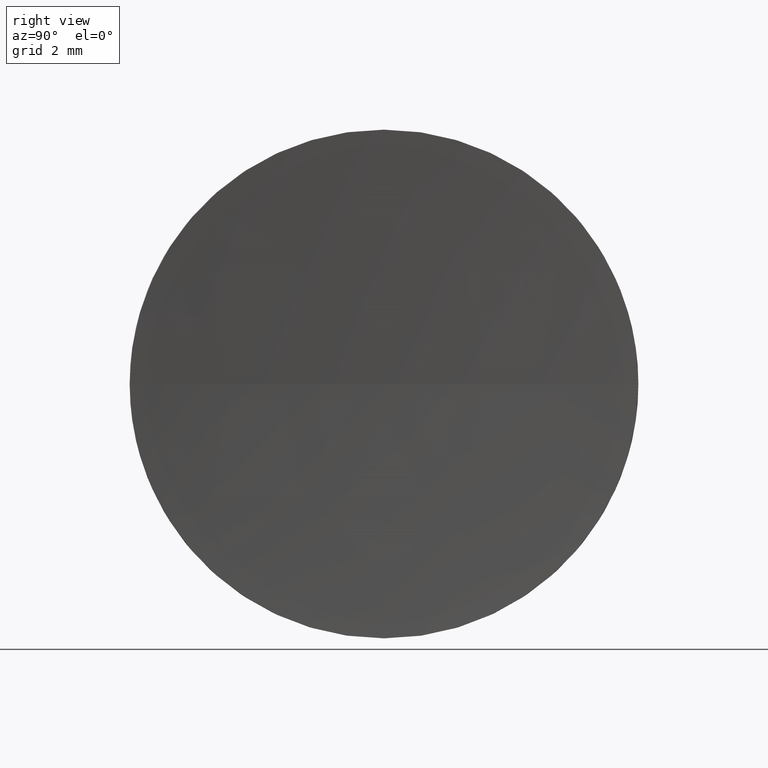
[diagram: clean part render]
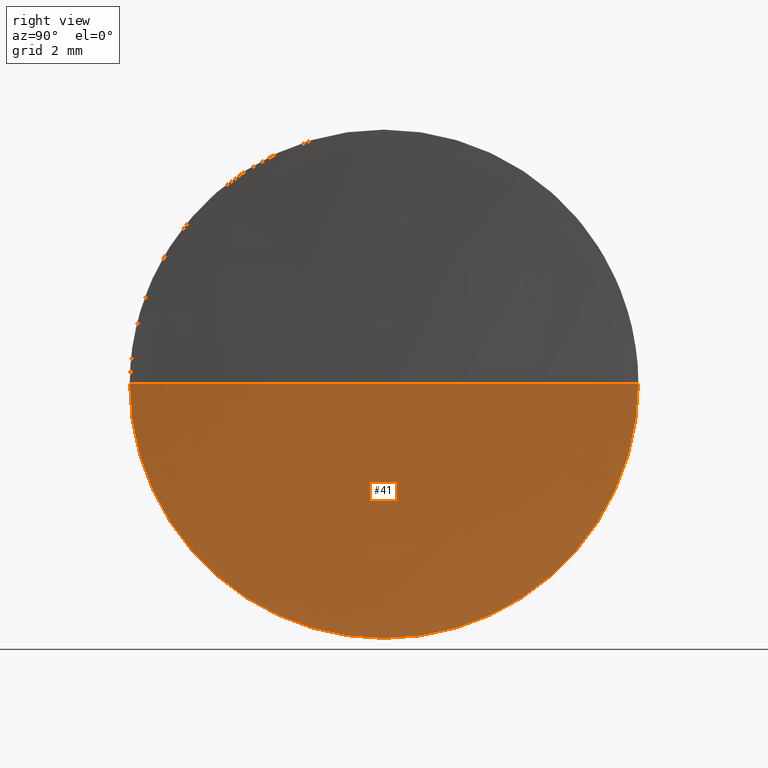
[diagram: same view with one face highlighted and labeled with its STEP entity id]
A machine part, right view. The second image highlights one B-rep face of the part: STEP entity #41.
In plain terms, the highlighted spherical surface has radius 80 mm.
Its self-contained STEP definition (entity closure, byte-faithful):
#7 = DIRECTION ( 'NONE',  ( 0.0000000000000000000, 0.0000000000000000000, 1.000000000000000000 ) ) ;
#8 = CARTESIAN_POINT ( 'NONE',  ( 60.79084220315108000, 34.68901056168621700, -6.249999999999998200 ) ) ;
#10 = VERTEX_POINT ( 'NONE', #141 ) ;
#15 = ORIENTED_EDGE ( 'NONE', *, *, #63, .F. ) ;
#18 = DIRECTION ( 'NONE',  ( -1.000000000000000000, -0.0000000000000000000, -0.0000000000000000000 ) ) ;
#34 = DIRECTION ( 'NONE',  ( 0.0000000000000000000, 1.000000000000000000, 0.0000000000000000000 ) ) ;
#37 = CARTESIAN_POINT ( 'NONE',  ( 60.79084220315108000, 40.93901056168626700, 0.0000000000000000000 ) ) ;
#41 = ADVANCED_FACE ( 'NONE', ( #149 ), #74, .F. ) ;
#42 = CIRCLE ( 'NONE', #66, 79.99999999999998600 ) ;
#45 = VERTEX_POINT ( 'NONE', #50 ) ;
#50 = CARTESIAN_POINT ( 'NONE',  ( 60.79084220315108000, 28.43901056168611800, -7.654042494671008900E-016 ) ) ;
#55 = DIRECTION ( 'NONE',  ( 0.0000000000000000000, 0.0000000000000000000, 1.000000000000000000 ) ) ;
#63 = EDGE_CURVE ( 'NONE', #75, #45, #100, .T. ) ;
#64 = ORIENTED_EDGE ( 'NONE', *, *, #83, .F. ) ;
#66 = AXIS2_PLACEMENT_3D ( 'NONE', #176, #55, #118 ) ;
#67 = CARTESIAN_POINT ( 'NONE',  ( 140.5463279078974200, 34.68901056168616000, 0.0000000000000000000 ) ) ;
#74 = SPHERICAL_SURFACE ( 'NONE', #137, 80.00000000000000000 ) ;
#75 = VERTEX_POINT ( 'NONE', #8 ) ;
#79 = EDGE_CURVE ( 'NONE', #122, #75, #178, .T. ) ;
#83 = EDGE_CURVE ( 'NONE', #45, #10, #186, .T. ) ;
#87 = AXIS2_PLACEMENT_3D ( 'NONE', #175, #89, #7 ) ;
#89 = DIRECTION ( 'NONE',  ( -1.000000000000000000, -0.0000000000000000000, -0.0000000000000000000 ) ) ;
#98 = CARTESIAN_POINT ( 'NONE',  ( 60.79084220315108000, 34.68901056168621700, 0.0000000000000000000 ) ) ;
#100 = CIRCLE ( 'NONE', #87, 6.249999999999998200 ) ;
#108 = EDGE_CURVE ( 'NONE', #122, #10, #42, .T. ) ;
#111 = EDGE_LOOP ( 'NONE', ( #64, #15, #155, #121 ) ) ;
#118 = DIRECTION ( 'NONE',  ( 1.000000000000000000, 0.0000000000000000000, 0.0000000000000000000 ) ) ;
#121 = ORIENTED_EDGE ( 'NONE', *, *, #108, .T. ) ;
#122 = VERTEX_POINT ( 'NONE', #37 ) ;
#126 = DIRECTION ( 'NONE',  ( 0.0000000000000000000, 0.0000000000000000000, 1.000000000000000000 ) ) ;
#137 = AXIS2_PLACEMENT_3D ( 'NONE', #67, #158, #34 ) ;
#141 = CARTESIAN_POINT ( 'NONE',  ( 60.54632790789742100, 34.68901056168616700, 0.0000000000000000000 ) ) ;
#146 = CARTESIAN_POINT ( 'NONE',  ( 140.5463279078974200, 34.68901056168616000, 0.0000000000000000000 ) ) ;
#149 = FACE_OUTER_BOUND ( 'NONE', #111, .T. ) ;
#155 = ORIENTED_EDGE ( 'NONE', *, *, #79, .F. ) ;
#156 = AXIS2_PLACEMENT_3D ( 'NONE', #98, #18, #126 ) ;
#158 = DIRECTION ( 'NONE',  ( 0.0000000000000000000, 0.0000000000000000000, -1.000000000000000000 ) ) ;
#162 = DIRECTION ( 'NONE',  ( 0.0000000000000000000, 1.224646799147353200E-016, -1.000000000000000000 ) ) ;
#164 = DIRECTION ( 'NONE',  ( 0.0000000000000000000, 1.000000000000000000, 1.224646799147353200E-016 ) ) ;
#171 = AXIS2_PLACEMENT_3D ( 'NONE', #146, #162, #164 ) ;
#175 = CARTESIAN_POINT ( 'NONE',  ( 60.79084220315108000, 34.68901056168621700, 0.0000000000000000000 ) ) ;
#176 = CARTESIAN_POINT ( 'NONE',  ( 140.5463279078974200, 34.68901056168616000, 0.0000000000000000000 ) ) ;
#178 = CIRCLE ( 'NONE', #156, 6.249999999999998200 ) ;
#186 = CIRCLE ( 'NONE', #171, 80.00000000000000000 ) ;